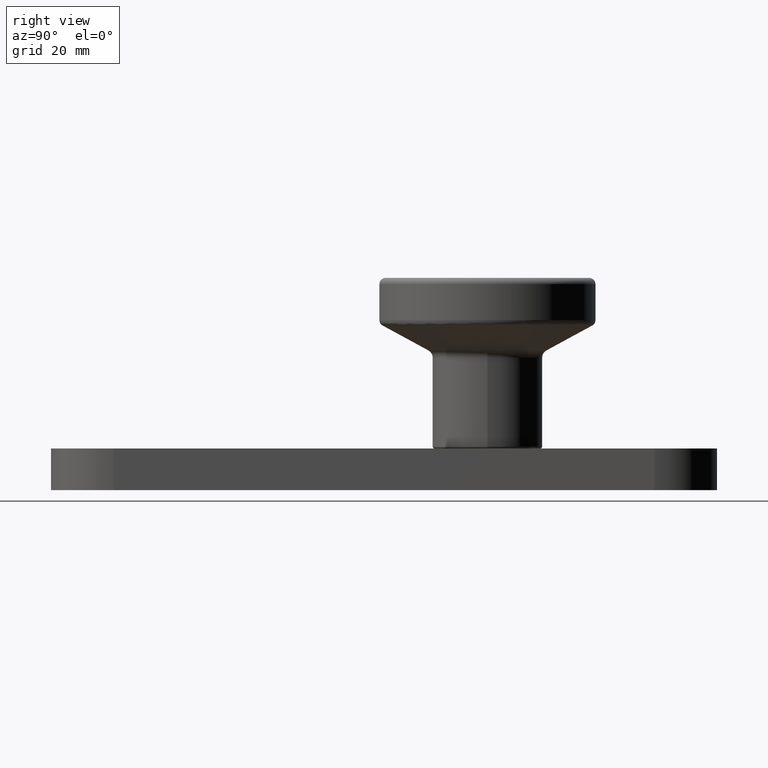
[diagram: clean part render]
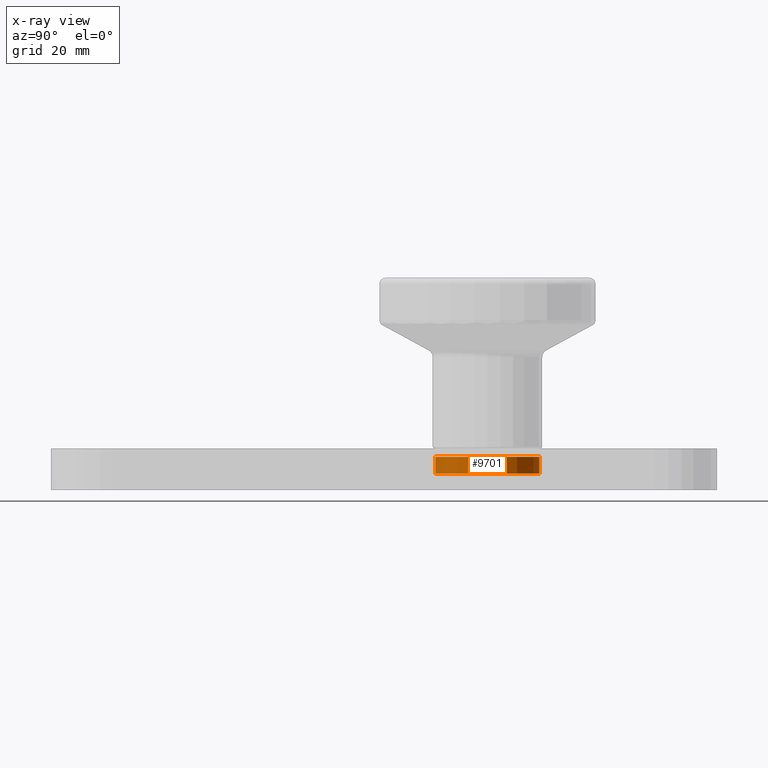
[diagram: x-ray — body ghosted, one internal face saturated and labeled with its STEP entity id]
A machine part, right view, then the same camera in x-ray: the body is ghosted and one INTERNAL B-rep face — a face not visible from any outside direction — is saturated and labeled: STEP entity #9701.
In plain terms, the highlighted cylindrical surface (bore or boss wall) has radius 12.5 mm, axis along (0, 0, 1).
Its self-contained STEP definition (entity closure, byte-faithful):
#905 = ORIENTED_EDGE ( 'NONE', *, *, #4369, .T. ) ;
#1497 = CIRCLE ( 'NONE', #8916, 12.50000000000000711 ) ;
#1889 = EDGE_CURVE ( 'NONE', #5593, #5593, #1497, .T. ) ;
#2317 = DIRECTION ( 'NONE',  ( 0.000000000000000000, -1.000000000000000000, 2.124151195073641295E-16 ) ) ;
#2614 = DIRECTION ( 'NONE',  ( 0.000000000000000000, -1.000000000000000000, 2.775557561562889872E-16 ) ) ;
#3087 = CARTESIAN_POINT ( 'NONE',  ( 0.000000000000000000, -12.50000000000001066, -22.49999999999999289 ) ) ;
#3434 = DIRECTION ( 'NONE',  ( 0.000000000000000000, -1.000000000000000000, 2.775557561562889872E-16 ) ) ;
#3516 = DIRECTION ( 'NONE',  ( -0.000000000000000000, 2.124151195073641295E-16, 1.000000000000000000 ) ) ;
#4369 = EDGE_CURVE ( 'NONE', #9993, #9993, #9910, .T. ) ;
#5593 = VERTEX_POINT ( 'NONE', #7870 ) ;
#6383 = FACE_OUTER_BOUND ( 'NONE', #10611, .T. ) ;
#6385 = AXIS2_PLACEMENT_3D ( 'NONE', #9091, #3516, #3434 ) ;
#6674 = FACE_OUTER_BOUND ( 'NONE', #8221, .T. ) ;
#7870 = CARTESIAN_POINT ( 'NONE',  ( 0.000000000000000000, -12.50000000000001066, -18.49999999999999289 ) ) ;
#7986 = DIRECTION ( 'NONE',  ( -0.000000000000000000, 2.124151195073641295E-16, 1.000000000000000000 ) ) ;
#8221 = EDGE_LOOP ( 'NONE', ( #905 ) ) ;
#8274 = CARTESIAN_POINT ( 'NONE',  ( 0.000000000000000000, -3.469446951953614189E-15, -18.49999999999999645 ) ) ;
#8916 = AXIS2_PLACEMENT_3D ( 'NONE', #8274, #12108, #2614 ) ;
#8922 = ORIENTED_EDGE ( 'NONE', *, *, #1889, .F. ) ;
#9091 = CARTESIAN_POINT ( 'NONE',  ( 0.000000000000000000, -3.469446951953614189E-15, -22.49999999999999645 ) ) ;
#9701 = ADVANCED_FACE ( 'NONE', ( #6674, #6383 ), #11900, .T. ) ;
#9836 = AXIS2_PLACEMENT_3D ( 'NONE', #9886, #7986, #2317 ) ;
#9886 = CARTESIAN_POINT ( 'NONE',  ( 0.000000000000000000, 0.000000000000000000, 0.000000000000000000 ) ) ;
#9910 = CIRCLE ( 'NONE', #6385, 12.50000000000000711 ) ;
#9993 = VERTEX_POINT ( 'NONE', #3087 ) ;
#10611 = EDGE_LOOP ( 'NONE', ( #8922 ) ) ;
#11900 = CYLINDRICAL_SURFACE ( 'NONE', #9836, 12.50000000000000711 ) ;
#12108 = DIRECTION ( 'NONE',  ( -0.000000000000000000, 2.124151195073641295E-16, 1.000000000000000000 ) ) ;